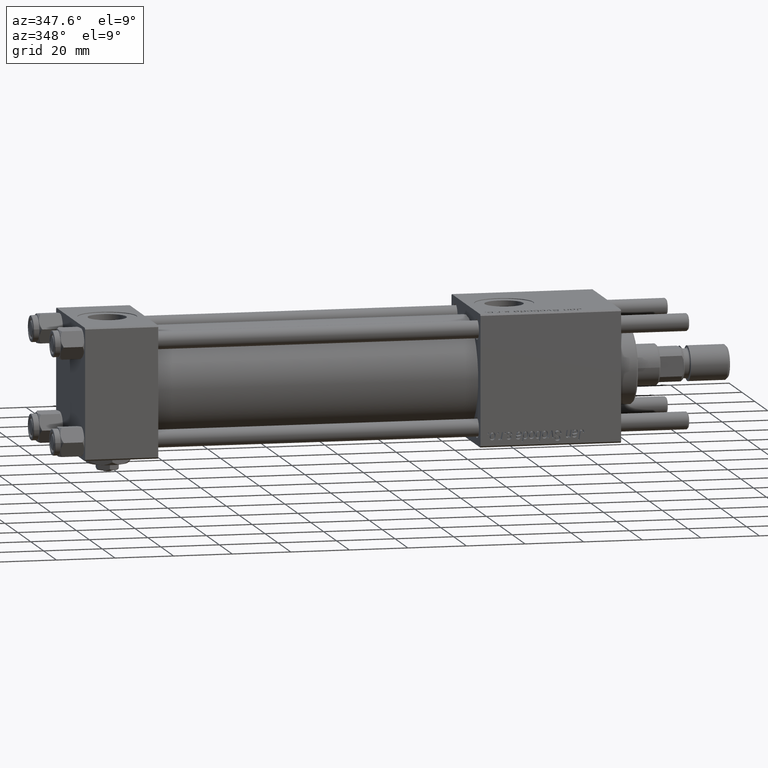
[diagram: clean part render]
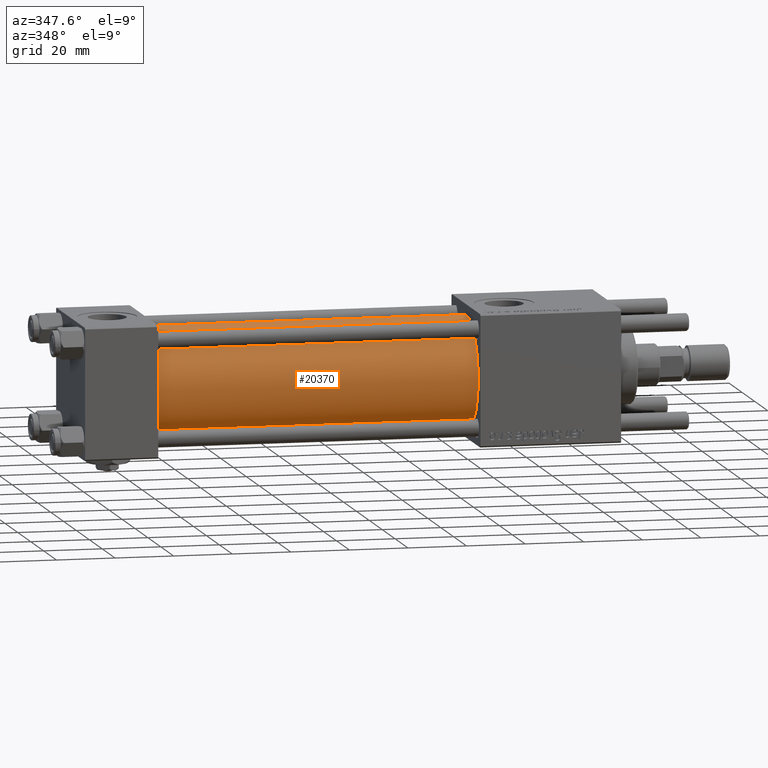
[diagram: same view with one face highlighted and labeled with its STEP entity id]
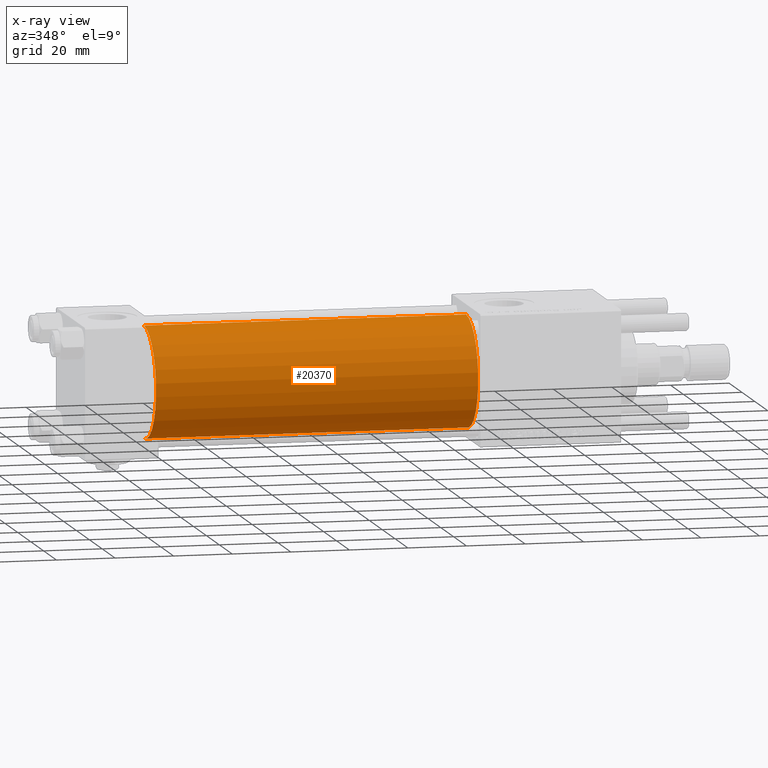
[diagram: x-ray of the same camera — body ghosted, the highlighted face saturated]
A machine part, auxiliary view. The second image highlights one B-rep face of the part: STEP entity #20370.
The next image is the same camera in x-ray: the body ghosted, the highlighted face saturated — about 0% of this face is hidden behind the body in this view.
In plain terms, the highlighted cylindrical surface (partial cylindrical patch) has radius 19 mm, axis along (-1, -0, -0).
Its self-contained STEP definition (entity closure, byte-faithful):
#255 = VERTEX_POINT ( 'NONE', #50735 ) ;
#630 = ORIENTED_EDGE ( 'NONE', *, *, #6422, .T. ) ;
#1124 = EDGE_CURVE ( 'NONE', #43582, #255, #3312, .T. ) ;
#2550 = ORIENTED_EDGE ( 'NONE', *, *, #17866, .F. ) ;
#3312 = LINE ( 'NONE', #35549, #3499 ) ;
#3499 = VECTOR ( 'NONE', #53738, 1000.000000000000000 ) ;
#6422 = EDGE_CURVE ( 'NONE', #255, #31220, #41635, .T. ) ;
#7704 = CIRCLE ( 'NONE', #23950, 19.00000000000000000 ) ;
#8150 = DIRECTION ( 'NONE',  ( 0.000000000000000000, 0.000000000000000000, -1.000000000000000000 ) ) ;
#8265 = AXIS2_PLACEMENT_3D ( 'NONE', #55337, #32678, #29080 ) ;
#8822 = ORIENTED_EDGE ( 'NONE', *, *, #17401, .F. ) ;
#12024 = DIRECTION ( 'NONE',  ( 0.000000000000000000, 0.000000000000000000, 1.000000000000000000 ) ) ;
#12355 = EDGE_LOOP ( 'NONE', ( #2550, #8822, #16752, #630 ) ) ;
#13232 = DIRECTION ( 'NONE',  ( 1.000000000000000000, 0.000000000000000000, 0.000000000000000000 ) ) ;
#15302 = AXIS2_PLACEMENT_3D ( 'NONE', #35299, #52895, #12024 ) ;
#16752 = ORIENTED_EDGE ( 'NONE', *, *, #1124, .T. ) ;
#17401 = EDGE_CURVE ( 'NONE', #43582, #26154, #7704, .T. ) ;
#17866 = EDGE_CURVE ( 'NONE', #26154, #31220, #56310, .T. ) ;
#20370 = ADVANCED_FACE ( 'NONE', ( #57668 ), #57086, .T. ) ;
#23950 = AXIS2_PLACEMENT_3D ( 'NONE', #49033, #13232, #8150 ) ;
#26154 = VERTEX_POINT ( 'NONE', #30962 ) ;
#29080 = DIRECTION ( 'NONE',  ( 0.000000000000000000, 0.000000000000000000, 1.000000000000000000 ) ) ;
#30962 = CARTESIAN_POINT ( 'NONE',  ( 135.0000000000000000, -2.752562955852396712E-16, -19.00000000000000000 ) ) ;
#31220 = VERTEX_POINT ( 'NONE', #42382 ) ;
#31554 = VECTOR ( 'NONE', #52704, 1000.000000000000000 ) ;
#32678 = DIRECTION ( 'NONE',  ( 1.000000000000000000, -0.000000000000000000, 0.000000000000000000 ) ) ;
#35299 = CARTESIAN_POINT ( 'NONE',  ( 135.0000000000000000, -2.602085213965210642E-15, 0.000000000000000000 ) ) ;
#35549 = CARTESIAN_POINT ( 'NONE',  ( 135.0000000000000000, -2.602085213965210642E-15, 19.00000000000000000 ) ) ;
#41635 = CIRCLE ( 'NONE', #8265, 19.00000000000000000 ) ;
#42382 = CARTESIAN_POINT ( 'NONE',  ( 24.99999999999999289, -2.752562955852396712E-16, -19.00000000000000000 ) ) ;
#43582 = VERTEX_POINT ( 'NONE', #56828 ) ;
#49033 = CARTESIAN_POINT ( 'NONE',  ( 135.0000000000000000, -2.602085213965210642E-15, 0.000000000000000000 ) ) ;
#50735 = CARTESIAN_POINT ( 'NONE',  ( 24.99999999999999289, -2.602085213965210642E-15, 19.00000000000000000 ) ) ;
#52410 = CARTESIAN_POINT ( 'NONE',  ( 135.0000000000000000, -2.752562955852396712E-16, -19.00000000000000000 ) ) ;
#52704 = DIRECTION ( 'NONE',  ( -1.000000000000000000, -0.000000000000000000, -0.000000000000000000 ) ) ;
#52895 = DIRECTION ( 'NONE',  ( -1.000000000000000000, -0.000000000000000000, -0.000000000000000000 ) ) ;
#53738 = DIRECTION ( 'NONE',  ( -1.000000000000000000, -0.000000000000000000, -0.000000000000000000 ) ) ;
#55337 = CARTESIAN_POINT ( 'NONE',  ( 24.99999999999999289, -2.602085213965210642E-15, 0.000000000000000000 ) ) ;
#56310 = LINE ( 'NONE', #52410, #31554 ) ;
#56828 = CARTESIAN_POINT ( 'NONE',  ( 135.0000000000000000, -2.602085213965210642E-15, 19.00000000000000000 ) ) ;
#57086 = CYLINDRICAL_SURFACE ( 'NONE', #15302, 19.00000000000000000 ) ;
#57668 = FACE_OUTER_BOUND ( 'NONE', #12355, .T. ) ;